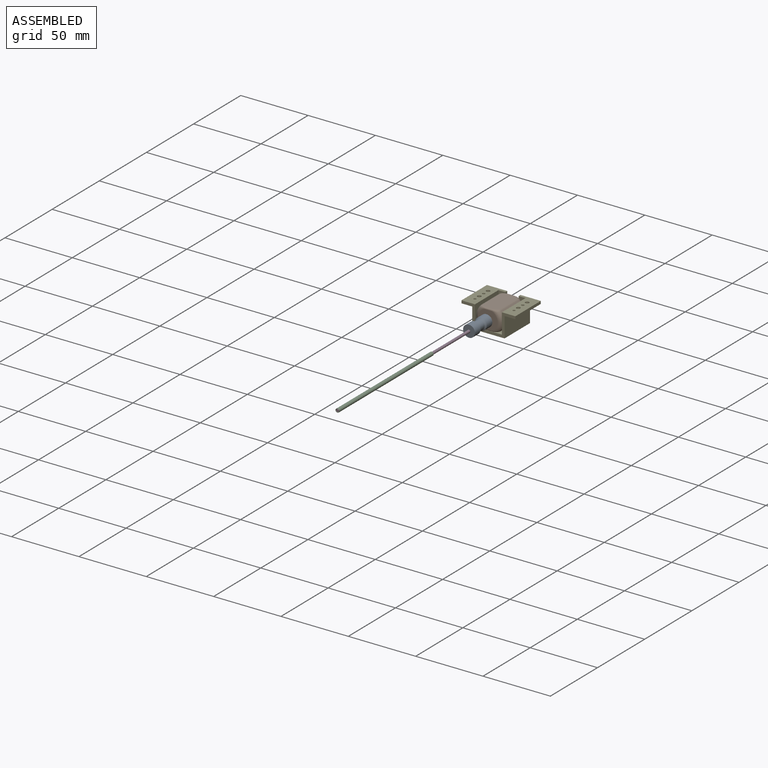
[diagram: assembled view]
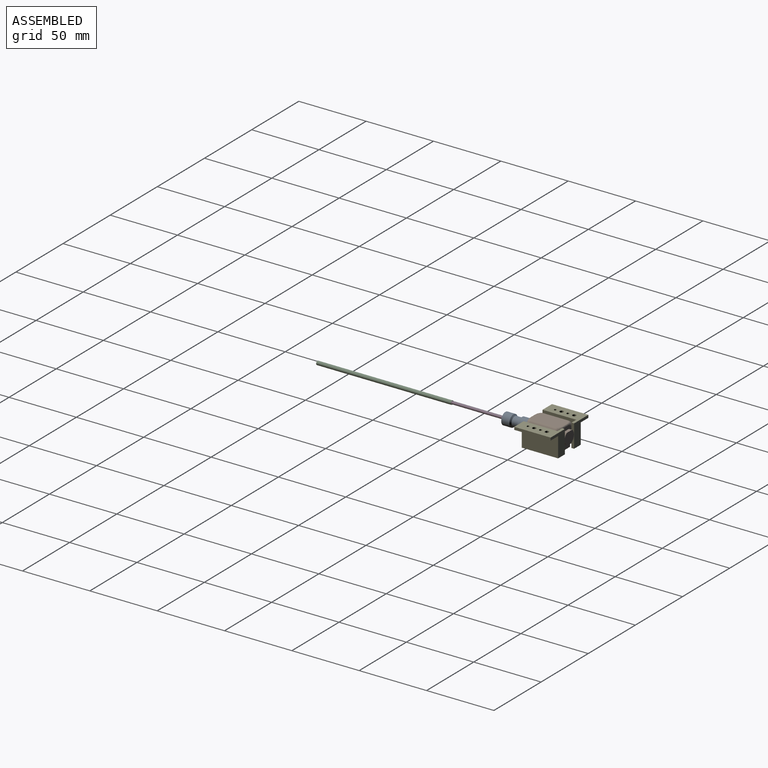
[diagram: assembled view, second angle]
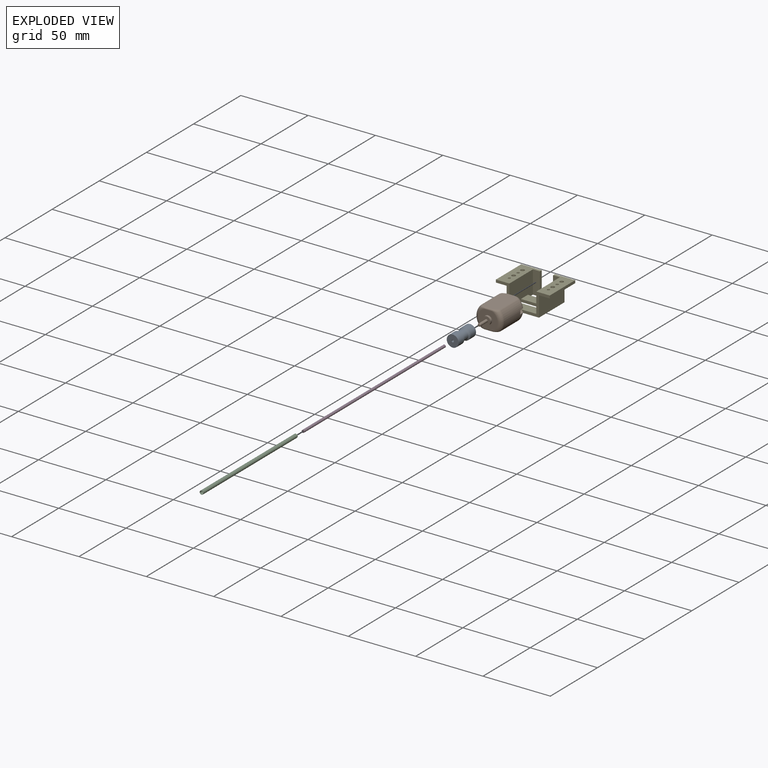
[diagram: exploded view]
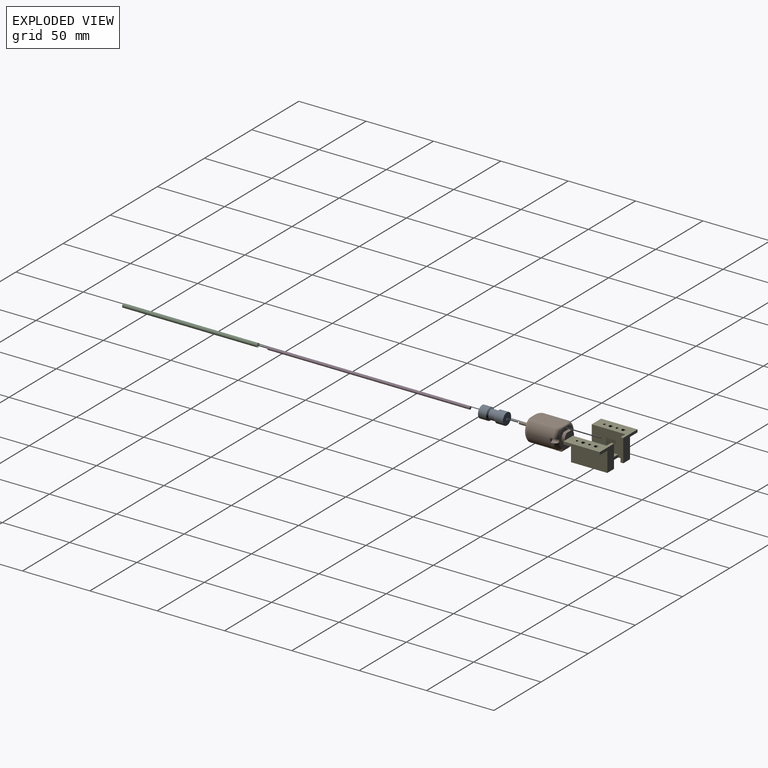
[diagram: exploded view, second angle]
ASSEMBLY  parts=5 mates=4
PART A: 8 faces, bbox 8.8x8.8x18.5 mm
  f0: cylinder r=4.4mm len=8.8mm, axis (0,0,-1), area 167.3mm2, adj f1,f6
  f1: plane 8.8x8.8mm, normal (0,0,-1), area 58.6mm2, adj f0,f7
  f2: cylinder r=3.45mm len=6.9mm, axis (0,0,-1), area 97.5mm2, adj f5,f6
  f3: cylinder r=4.4mm len=8.8mm, axis (0,0,-1), area 167.3mm2, adj f4,f5
  f4: plane 8.8x8.8mm, normal (0,0,1), area 58.6mm2, adj f3,f7
  f5: cone r=4.45mm half-angle=45deg, axis (0,0,1), area 33.1mm2, adj f2,f3
  f6: cone r=3.45mm half-angle=45deg, axis (0,0,-1), area 33.1mm2, adj f0,f2
  f7: cylinder r=0.85mm len=18.5mm, axis (0,0,1), area 98.8mm2, adj f1,f4
PART B: 48 faces, bbox 20.3x21.8x37.2 mm
  f0: plane 1.4x1.4mm, normal (0,0,1), area 1.5mm2, adj f1
  f1: torus R=0.7mm, axis (0,0,1), area 2.6mm2, adj f0,f2
  f2: cylinder r=1mm len=7.7mm, axis (0,0,1), area 48.4mm2, adj f1,f8
  f3: plane 3x2.65mm, normal (0,0,-1), area 6.9mm2, adj f4,f5,f6,f9
  f4: plane 4.34x1.13mm, normal (-1,0,0), area 3.7mm2, adj f3,f6,f9,f11
  f5: plane 4.35x1.13mm, normal (1,0,0), area 3.7mm2, adj f3,f6,f9,f11
  f6: cylinder r=1.5mm len=4.26mm, axis (0,0,-1), area 20.1mm2, adj f3,f4,f5,f11
  f7: plane 9.8x8.9mm, normal (0,0,-1), area 72mm2, adj f14,f15
  f8: plane 6x6mm, normal (0,0,1), area 25.1mm2, adj f2,f22
  f9: cylinder r=10mm len=19mm, axis (0,0,1), area 282mm2, adj f3,f4,f5,f11,f18,f21,f25
  f10: plane 8x4mm, normal (-1,0,0), area 32mm2, adj f13,f23,f28,f29
  f11: torus R=7mm, axis (0,0,1), area 58.7mm2, adj f4,f5,f6,f9,f12,f17,f24,f33
  f12: plane 1.46x0.13mm, normal (1,0,0), area 0mm2, adj f11,f23,f24,f33
  f13: cylinder r=1mm len=8mm, axis (0,-1,0), area 12.6mm2, adj f10,f23,f28,f33
  f14: plane 5.66x2.3mm, normal (1,0,0), area 13mm2, adj f7,f15,f33
  f15: cylinder r=4.9mm len=9.8mm, axis (0,0,-1), area 56.9mm2, adj f7,f14,f33
  f16: cylinder r=1mm len=5.2mm, axis (0,-1,0), area 8.2mm2, adj f17,f33,f34,f35
  f17: bspline ~4.66x3mm, area 9.5mm2, adj f11,f16,f18,f35
  f18: cylinder r=2mm len=19mm, axis (0,0,1), area 30.9mm2, adj f9,f17,f19,f35
  f19: bspline ~4.66x3mm, area 9.5mm2, adj f18,f20,f21,f35
  f20: cylinder r=1mm len=5.2mm, axis (0,1,0), area 8.2mm2, adj f19,f35,f37,f38
  f21: torus R=7mm, axis (0,0,1), area 80.8mm2, adj f9,f19,f26,f38
  f22: cylinder r=3mm len=6mm, axis (0,0,1), area 32mm2, adj f8,f38
  f23: plane 5.07x2.57mm, normal (0,1,0), area 7.7mm2, adj f10,f12,f13,f24,f29,f33,f39
  f24: bspline ~3.7x2.96mm, area 7.2mm2, adj f11,f12,f23,f25,f39
  f25: cylinder r=2mm len=19mm, axis (0,0,1), area 30.9mm2, adj f9,f24,f26,f39
  f26: bspline ~4.66x3mm, area 9.5mm2, adj f21,f25,f27,f39
  f27: cylinder r=1mm len=5.2mm, axis (0,-1,0), area 8.2mm2, adj f26,f36,f38,f39
  f28: plane 5.07x2.57mm, normal (0,-1,0), area 7.7mm2, adj f10,f13,f29,f31,f32,f33,f39
  f29: plane 8x1.5mm, normal (0,0,1), area 12mm2, adj f10,f23,f28,f39
  f30: cylinder r=1.5mm len=4.26mm, axis (0,0,-1), area 20.1mm2, adj f40,f41,f42,f43
  f31: bspline ~3.55x2.95mm, area 7.2mm2, adj f28,f32,f39,f43,f46
  f32: plane 1.46x0.13mm, normal (1,0,0), area 0mm2, adj f28,f31,f33,f43
  f33: plane 14.58x14.08mm, normal (0,0,-1), area 90.5mm2, adj f11,f12,f13,f14,f15,f16,f23,f28
  f34: bspline ~4.66x3mm, area 9.5mm2, adj f16,f35,f43,f44
  f35: plane 23.08x11.7mm, normal (1,0,0), area 260.3mm2, adj f16,f17,f18,f19,f20,f34,f37,f44
  f36: bspline ~4.66x3mm, area 9.5mm2, adj f27,f39,f45,f46
  f37: bspline ~4.66x3mm, area 9.5mm2, adj f20,f35,f44,f45
  f38: plane 14.08x13.08mm, normal (0,0,1), area 122.1mm2, adj f20,f21,f22,f27,f45
  f39: plane 22.83x11.78mm, normal (-1,0,0), area 228.5mm2, adj f23,f24,f25,f26,f27,f28,f29,f31
  f40: plane 4.34x1.13mm, normal (1,0,0), area 3.7mm2, adj f30,f41,f43,f47
  f41: plane 3x2.65mm, normal (0,0,-1), area 6.9mm2, adj f30,f40,f42,f47
  f42: plane 4.35x1.13mm, normal (-1,0,0), area 3.7mm2, adj f30,f41,f43,f47
  f43: torus R=7mm, axis (0,0,1), area 58.7mm2, adj f30,f31,f32,f33,f34,f40,f42,f47
  f44: cylinder r=2mm len=19mm, axis (0,0,1), area 30.9mm2, adj f34,f35,f37,f47
  f45: torus R=7mm, axis (0,0,1), area 80.8mm2, adj f36,f37,f38,f47
  f46: cylinder r=2mm len=19mm, axis (0,0,1), area 30.9mm2, adj f31,f36,f39,f47
  f47: cylinder r=10mm len=19mm, axis (0,0,1), area 282mm2, adj f40,f41,f42,f43,f44,f45,f46
PART C: 4 faces, bbox 2.8x100x2.8 mm
  f0: cylinder r=1.3mm len=100mm, axis (0,1,0), area 816.8mm2, adj f2,f3
  f1: cylinder r=1.4mm len=100mm, axis (0,1,0), area 879.6mm2, adj f2,f3
  f2: plane 2.8x2.8mm, normal (0,-1,0), area 0.8mm2, adj f0,f1
  f3: plane 2.8x2.8mm, normal (0,1,0), area 0.8mm2, adj f0,f1
PART D: 3 faces, bbox 2x150x2 mm
  f0: cylinder r=1mm len=150mm, axis (0,1,0), area 942.5mm2, adj f1,f2
  f1: plane 2x2mm, normal (0,-1,0), area 3.1mm2, adj f0
  f2: plane 2x2mm, normal (0,1,0), area 3.1mm2, adj f0
PART E: 31 faces, bbox 40x27x17 mm
  f0: plane 27x15mm, normal (-1,0,0), area 405mm2, adj f7,f8,f16,f25
  f1: plane 20x7.4mm, normal (0,0,1), area 148mm2, adj f3,f4,f13,f15
  f2: plane 20x7.4mm, normal (0,0,1), area 148mm2, adj f4,f5,f8,f15
  f3: plane 20x2mm, normal (0,-1,0), area 40mm2, adj f1,f4,f15,f16
  f4: plane 25x17mm, normal (-1,0,0), area 395.4mm2, adj f1,f2,f3,f5,f8,f12,f13,f16
  f5: plane 20x2mm, normal (0,1,0), area 40mm2, adj f2,f4,f15,f16
  f6: plane 17x2mm, normal (1,0,0), area 34mm2, adj f7,f14,f16,f17
  f7: plane 17x15.1mm, normal (0,1,0), area 136.7mm2, adj f0,f6,f16,f17,f25,f26
  f8: plane 40x17mm, normal (0,-1,0), area 140mm2, adj f0,f2,f4,f9,f15,f16,f17,f18
  f9: plane 27x15mm, normal (1,0,0), area 405mm2, adj f8,f10,f16,f19
  f10: plane 17x15.1mm, normal (0,1,0), area 136.7mm2, adj f9,f11,f16,f18,f19,f20
  f11: plane 17x2mm, normal (-1,0,0), area 34mm2, adj f10,f12,f16,f18
  f12: plane 17x5.1mm, normal (0,-1,0), area 86.7mm2, adj f4,f11,f16,f18
  f13: plane 20x2mm, normal (0,1,0), area 40mm2, adj f1,f4,f15,f16
  f14: plane 17x5.1mm, normal (0,-1,0), area 86.7mm2, adj f6,f15,f16,f17
  f15: plane 25x17mm, normal (1,0,0), area 395.4mm2, adj f1,f2,f3,f5,f8,f13,f14,f16
  f16: plane 27x24mm, normal (0,0,-1), area 424.4mm2, adj f0,f3,f4,f5,f6,f7,f8,f9
  f17: plane 27x15.1mm, normal (0,0,1), area 262.2mm2, adj f6,f7,f8,f14,f15,f26,f27,f28
  f18: plane 27x15.1mm, normal (0,0,1), area 262.2mm2, adj f4,f8,f10,f11,f12,f20,f21,f22
  f19: plane 27x8mm, normal (0,0,-1), area 198mm2, adj f8,f9,f10,f20,f21,f22,f23,f24
  f20: plane 27x2mm, normal (1,0,0), area 54mm2, adj f8,f10,f18,f19
  f21: cylinder r=1.4mm len=2.8mm, axis (0,0,-1), area 17.6mm2, adj f18,f19
  f22: cylinder r=1mm len=2mm, axis (0,0,-1), area 12.6mm2, adj f18,f19
  f23: cylinder r=1.4mm len=2.8mm, axis (0,0,-1), area 17.6mm2, adj f18,f19
  f24: cylinder r=0.9mm len=2mm, axis (0,0,-1), area 11.3mm2, adj f18,f19
  f25: plane 27x8mm, normal (0,0,-1), area 198mm2, adj f0,f7,f8,f26,f27,f28,f29,f30
  f26: plane 27x2mm, normal (-1,0,0), area 54mm2, adj f7,f8,f17,f25
  f27: cylinder r=0.9mm len=2mm, axis (0,0,-1), area 11.3mm2, adj f17,f25
  f28: cylinder r=1.4mm len=2.8mm, axis (0,0,-1), area 17.6mm2, adj f17,f25
  f29: cylinder r=1mm len=2mm, axis (0,0,-1), area 12.6mm2, adj f17,f25
  f30: cylinder r=1.4mm len=2.8mm, axis (0,0,-1), area 17.6mm2, adj f17,f25
PLACE A rot(axis=(0,0.71,0.71),180deg) t=(-26.45,-20.05,18.44)mm
PLACE B rot(axis=(0.58,-0.58,0.58),120deg) t=(-26.45,27.45,18.23)mm
PLACE C t=(-1.2,-109.55,18.44)mm
PLACE D t=(-26.45,-84.55,18.44)mm
PLACE E t=(-26.45,14.05,8.94)mm fixed
MATE fastened A.f3 <-> B.f15  axis (0,1,0) through (-26.45,-1.55,18.44)mm
MATE fastened D.f0 <-> B.f15  axis (0,1,0) through (-26.45,-9.55,18.44)mm
MATE cylindrical C.f0 <-> D.f0  axis (0,-1,0) through (-26.45,-159.55,18.44)mm
MATE fastened B.f29 <-> E.f13  axis (0,-1,0) through (-26.45,20.15,10.94)mm
